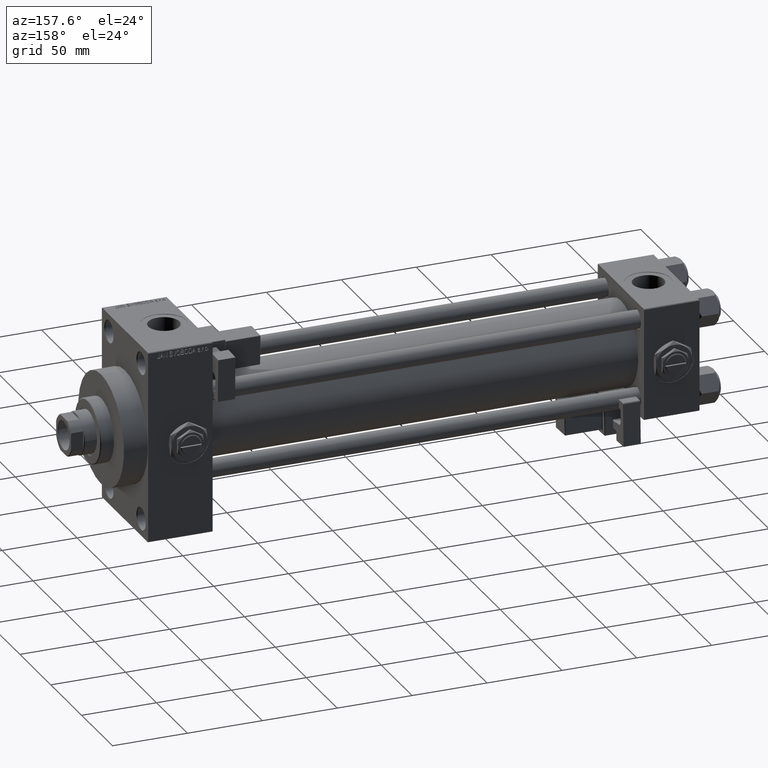
[diagram: clean part render]
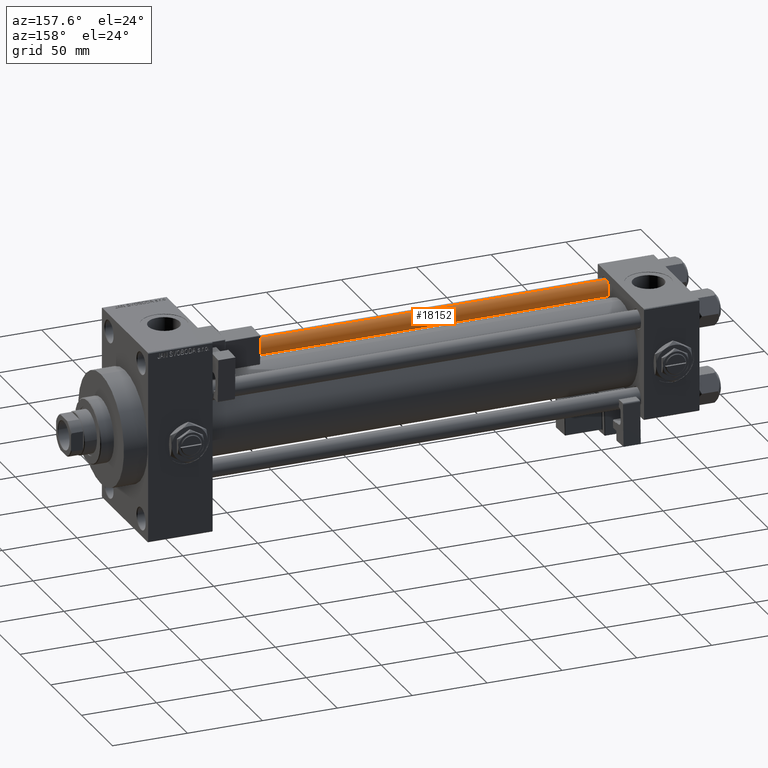
[diagram: same view with one face highlighted and labeled with its STEP entity id]
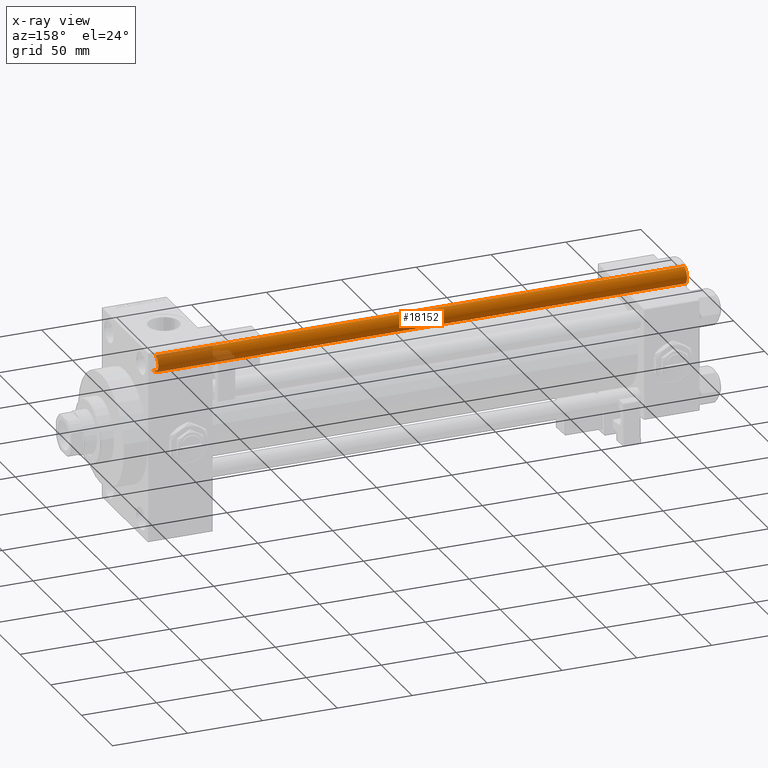
[diagram: x-ray of the same camera — body ghosted, the highlighted face saturated]
A machine part, auxiliary view. The second image highlights one B-rep face of the part: STEP entity #18152.
The next image is the same camera in x-ray: the body ghosted, the highlighted face saturated — about 13% of this face is hidden behind the body in this view.
In plain terms, the highlighted cylindrical surface (edge-blend (fillet) strip) has radius 6 mm, axis along (1, 0, 0).
Its self-contained STEP definition (entity closure, byte-faithful):
#384 = VECTOR ( 'NONE', #42844, 1000.000000000000000 ) ;
#1455 = DIRECTION ( 'NONE',  ( -0.000000000000000000, -0.000000000000000000, -1.000000000000000000 ) ) ;
#3144 = CARTESIAN_POINT ( 'NONE',  ( 6.000000000000000888, 7.347880794884120722E-16, 0.5000000000000559552 ) ) ;
#3769 = DIRECTION ( 'NONE',  ( 1.000000000000000000, 0.000000000000000000, 0.000000000000000000 ) ) ;
#6561 = VERTEX_POINT ( 'NONE', #3144 ) ;
#13573 = CARTESIAN_POINT ( 'NONE',  ( -6.000000000000000888, 0.000000000000000000, 0.5000000000000559552 ) ) ;
#13671 = DIRECTION ( 'NONE',  ( 1.000000000000000000, 0.000000000000000000, 0.000000000000000000 ) ) ;
#14483 = EDGE_CURVE ( 'NONE', #40391, #33342, #15298, .T. ) ;
#14810 = EDGE_CURVE ( 'NONE', #40781, #40391, #26729, .T. ) ;
#15298 = LINE ( 'NONE', #27523, #48329 ) ;
#16828 = CARTESIAN_POINT ( 'NONE',  ( 0.000000000000000000, 0.000000000000000000, 354.0000000000000000 ) ) ;
#17582 = AXIS2_PLACEMENT_3D ( 'NONE', #19398, #27723, #3769 ) ;
#18152 = ADVANCED_FACE ( 'NONE', ( #45180 ), #25420, .T. ) ;
#18201 = AXIS2_PLACEMENT_3D ( 'NONE', #16828, #1455, #36872 ) ;
#19398 = CARTESIAN_POINT ( 'NONE',  ( 0.000000000000000000, 0.000000000000000000, 353.5000000000000000 ) ) ;
#20314 = AXIS2_PLACEMENT_3D ( 'NONE', #33948, #30061, #13671 ) ;
#21831 = CARTESIAN_POINT ( 'NONE',  ( -6.000000000000000888, 0.000000000000000000, 353.5000000000000000 ) ) ;
#22224 = ORIENTED_EDGE ( 'NONE', *, *, #14810, .T. ) ;
#23111 = DIRECTION ( 'NONE',  ( -0.000000000000000000, -0.000000000000000000, -1.000000000000000000 ) ) ;
#24814 = ORIENTED_EDGE ( 'NONE', *, *, #35711, .T. ) ;
#25420 = CYLINDRICAL_SURFACE ( 'NONE', #18201, 6.000000000000000888 ) ;
#26120 = CIRCLE ( 'NONE', #20314, 6.000000000000000888 ) ;
#26729 = CIRCLE ( 'NONE', #17582, 6.000000000000000888 ) ;
#27523 = CARTESIAN_POINT ( 'NONE',  ( -6.000000000000000888, 0.000000000000000000, 354.0000000000000000 ) ) ;
#27723 = DIRECTION ( 'NONE',  ( 0.000000000000000000, 0.000000000000000000, -1.000000000000000000 ) ) ;
#27750 = CARTESIAN_POINT ( 'NONE',  ( 6.000000000000000888, 7.347880794884120722E-16, 354.0000000000000000 ) ) ;
#30061 = DIRECTION ( 'NONE',  ( -0.000000000000000000, -0.000000000000000000, 1.000000000000000000 ) ) ;
#30388 = ORIENTED_EDGE ( 'NONE', *, *, #36610, .F. ) ;
#31661 = LINE ( 'NONE', #27750, #384 ) ;
#33342 = VERTEX_POINT ( 'NONE', #13573 ) ;
#33948 = CARTESIAN_POINT ( 'NONE',  ( 0.000000000000000000, 0.000000000000000000, 0.5000000000000559552 ) ) ;
#35711 = EDGE_CURVE ( 'NONE', #33342, #6561, #26120, .T. ) ;
#36610 = EDGE_CURVE ( 'NONE', #40781, #6561, #31661, .T. ) ;
#36872 = DIRECTION ( 'NONE',  ( -1.000000000000000000, 0.000000000000000000, 0.000000000000000000 ) ) ;
#40205 = EDGE_LOOP ( 'NONE', ( #30388, #22224, #43105, #24814 ) ) ;
#40391 = VERTEX_POINT ( 'NONE', #21831 ) ;
#40781 = VERTEX_POINT ( 'NONE', #42568 ) ;
#42568 = CARTESIAN_POINT ( 'NONE',  ( 6.000000000000000888, 7.347880794884120722E-16, 353.5000000000000000 ) ) ;
#42844 = DIRECTION ( 'NONE',  ( -0.000000000000000000, -0.000000000000000000, -1.000000000000000000 ) ) ;
#43105 = ORIENTED_EDGE ( 'NONE', *, *, #14483, .T. ) ;
#45180 = FACE_OUTER_BOUND ( 'NONE', #40205, .T. ) ;
#48329 = VECTOR ( 'NONE', #23111, 1000.000000000000000 ) ;